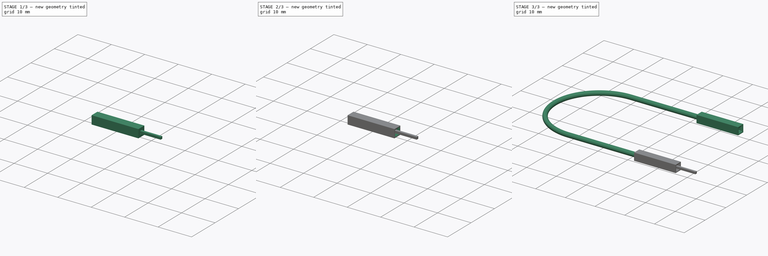
[diagram: build sequence overview — one tinted view per stage of 3, left to right]
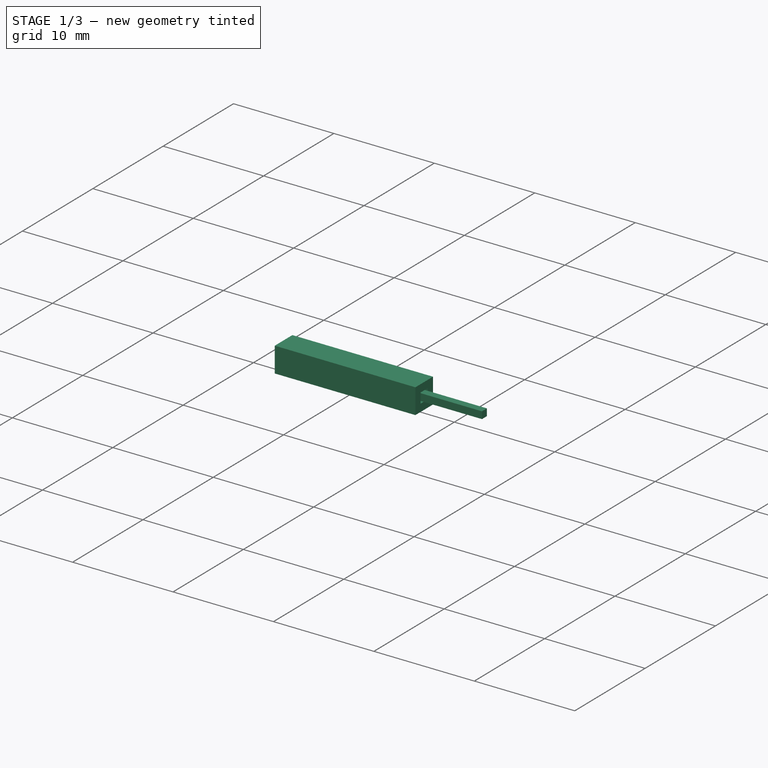
[diagram: stage 1 of 3 — iso view after this stage's code; geometry added in this stage tinted green]
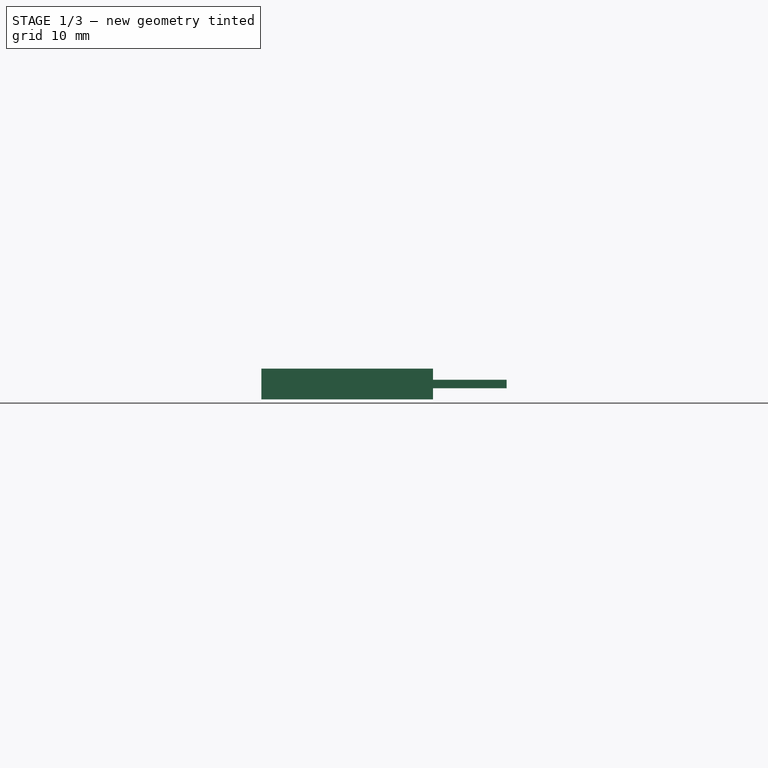
[diagram: stage 1 of 3 — front view after this stage's code; geometry added in this stage tinted green]
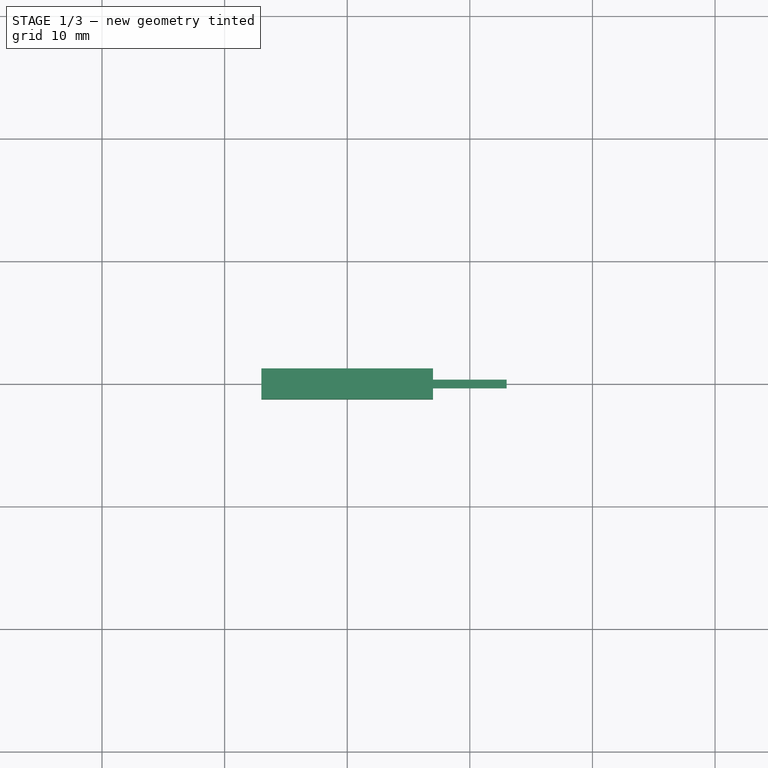
[diagram: stage 1 of 3 — top view after this stage's code; geometry added in this stage tinted green]
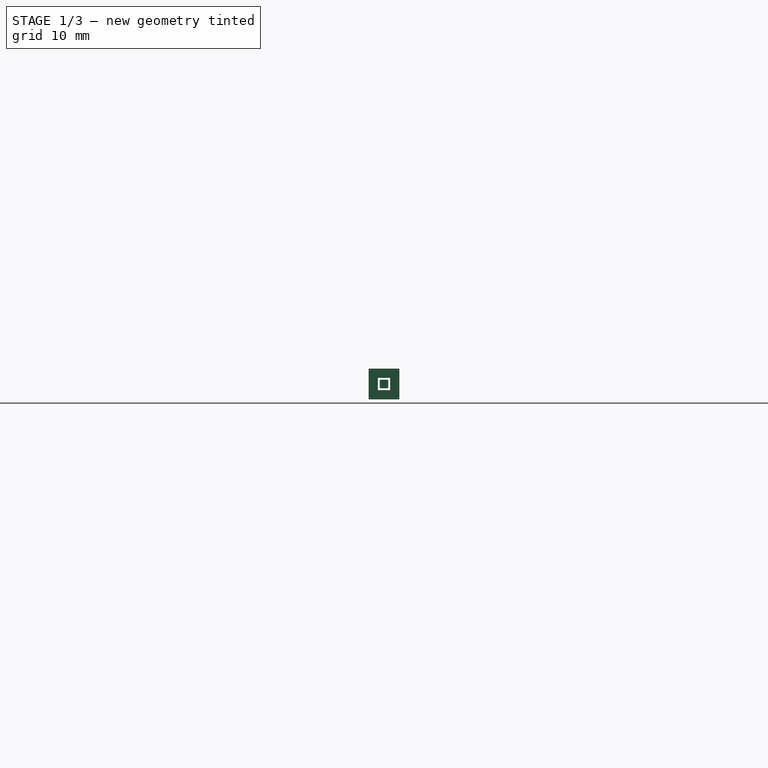
[diagram: stage 1 of 3 — right view after this stage's code; geometry added in this stage tinted green]
FCSTD DOCUMENT  (FreeCAD 0.14R3692 (Git))
Label: JumperWire_Male-Female
License: CC-BY 3.0
LicenseURL: http://creativecommons.org/licenses/by/3.0/
objects: Sketcher::SketchObject×6, PartDesign::Pad×2, PartDesign::Pocket×2, Part::Sweep×1, Part::Chamfer×1, Part::FeaturePython×1, Part::MultiFuse×1
note: 18 computed .brp shape members not serialized (recipe doc carries the construction recipe); baked Part::Feature solids carry a one-line shape summary decoded from their .brp

FEATURE [Sketcher::SketchObject] Sketch  label="HousingSketch"
  Placement = pos=(0,0,0) rot=(0.57735,0.57735,0.57735;2.0944rad)
  sketch-geometry (4):
    g0: LineSegment StartX=1.25 StartY=-1.25 StartZ=0 EndX=-1.25 EndY=-1.25 EndZ=0
    g1: LineSegment StartX=-1.25 StartY=-1.25 StartZ=0 EndX=-1.25 EndY=1.25 EndZ=0
    g2: LineSegment StartX=-1.25 StartY=1.25 StartZ=0 EndX=1.25 EndY=1.25 EndZ=0
    g3: LineSegment StartX=1.25 StartY=1.25 StartZ=0 EndX=1.25 EndY=-1.25 EndZ=0
  constraints (11):
    c: Coincident(g0,g1)
    c: Coincident(g1,g2)
    c: Coincident(g2,g3)
    c: Coincident(g3,g0)
    c: Horizontal(g0)
    c: Horizontal(g2)
    c: Vertical(g1)
    c: Vertical(g3)
    c: DistanceX(g0) = -2.5
    c: Symmetric(g0,g2,g-1)
    c: Equal(g0,g3)
FEATURE [PartDesign::Pad] Pad  label="HousingPad"
  Length = 14
  Length2 = 100
  Midplane = true
  Placement = pos=(0,0,0) rot=(0.57735,0.57735,0.57735;2.0944rad)
  Sketch = -> Sketch
  Type = 0
FEATURE [Sketcher::SketchObject] Sketch003  label="HousingPinHoleSketch003"
  Placement = pos=(7,0,0) rot=(0.57735,0.57735,0.57735;2.0944rad)
  Support = -> Pad [Face6]
  sketch-geometry (4):
    g0: LineSegment StartX=-0.5 StartY=0.5 StartZ=0 EndX=0.5 EndY=0.5 EndZ=0
    g1: LineSegment StartX=0.5 StartY=0.5 StartZ=0 EndX=0.5 EndY=-0.5 EndZ=0
    g2: LineSegment StartX=0.5 StartY=-0.5 StartZ=0 EndX=-0.5 EndY=-0.5 EndZ=0
    g3: LineSegment StartX=-0.5 StartY=-0.5 StartZ=0 EndX=-0.5 EndY=0.5 EndZ=0
  constraints (11):
    c: Coincident(g0,g1)
    c: Coincident(g1,g2)
    c: Coincident(g2,g3)
    c: Coincident(g3,g0)
    c: Horizontal(g0)
    c: Horizontal(g2)
    c: Vertical(g1)
    c: Vertical(g3)
    c: Symmetric(g2,g0,g-1)
    c: Equal(g2,g1)
    c: DistanceX(g2) = -1
FEATURE [PartDesign::Pocket] Pocket  label="HousingPinHolePocket"
  Length = 5
  Placement = pos=(0,0,0) rot=(0.57735,0.57735,0.57735;2.0944rad)
  Sketch = -> Sketch003
  Type = 1
FEATURE [Sketcher::SketchObject] Sketch005  label="PinSketch005"
  Placement = pos=(0,0,0) rot=(0.57735,0.57735,0.57735;2.0944rad)
  sketch-geometry (4):
    g0: LineSegment StartX=0.35 StartY=-0.35 StartZ=0 EndX=-0.35 EndY=-0.35 EndZ=0
    g1: LineSegment StartX=-0.35 StartY=-0.35 StartZ=0 EndX=-0.35 EndY=0.35 EndZ=0
    g2: LineSegment StartX=-0.35 StartY=0.35 StartZ=0 EndX=0.35 EndY=0.35 EndZ=0
    g3: LineSegment StartX=0.35 StartY=0.35 StartZ=0 EndX=0.35 EndY=-0.35 EndZ=0
  constraints (11):
    c: Coincident(g0,g1)
    c: Coincident(g1,g2)
    c: Coincident(g2,g3)
    c: Coincident(g3,g0)
    c: Horizontal(g0)
    c: Horizontal(g2)
    c: Vertical(g1)
    c: Vertical(g3)
    c: Equal(g0,g3)
    c: Symmetric(g0,g2,g-1)
    c: DistanceX(g0) = -0.7
FEATURE [PartDesign::Pad] Pad001  label="PinPad001"
  Length = 13
  Length2 = 100
  Placement = pos=(0,0,0) rot=(0.57735,0.57735,0.57735;2.0944rad)
  Sketch = -> Sketch005
  Type = 0
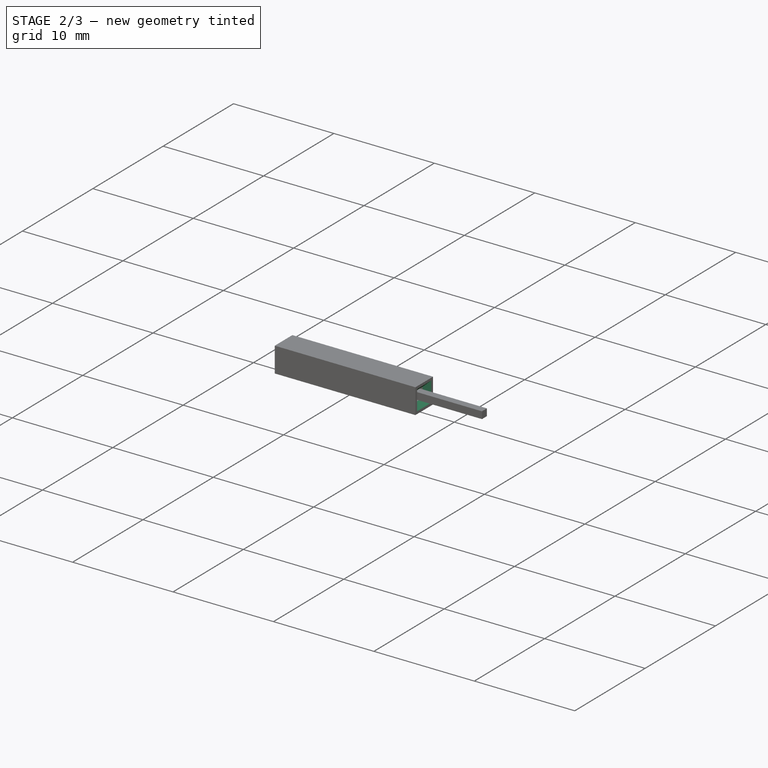
[diagram: stage 2 of 3 — iso view after this stage's code; geometry added in this stage tinted green]
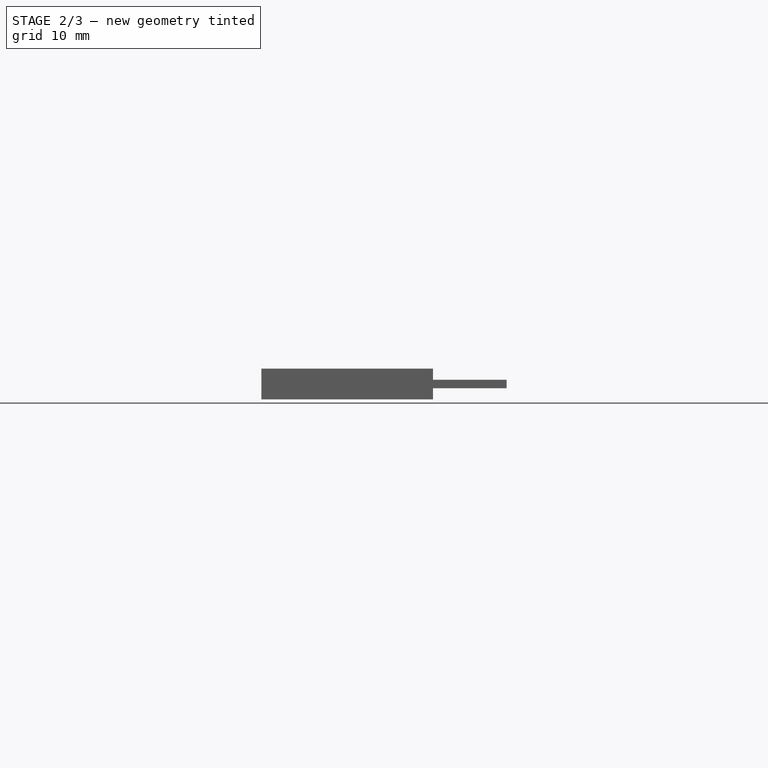
[diagram: stage 2 of 3 — front view after this stage's code; geometry added in this stage tinted green]
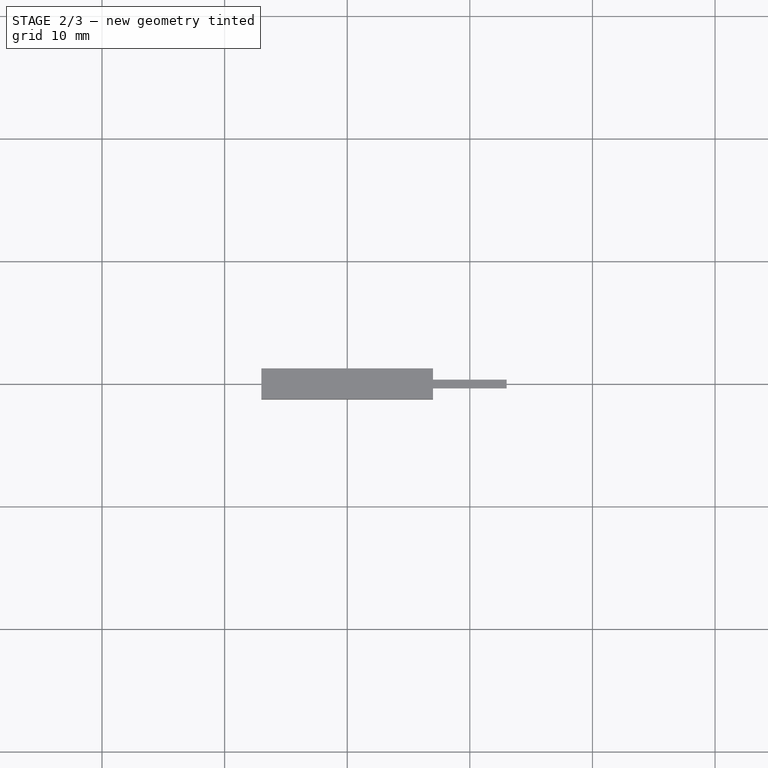
[diagram: stage 2 of 3 — top view after this stage's code; geometry added in this stage tinted green]
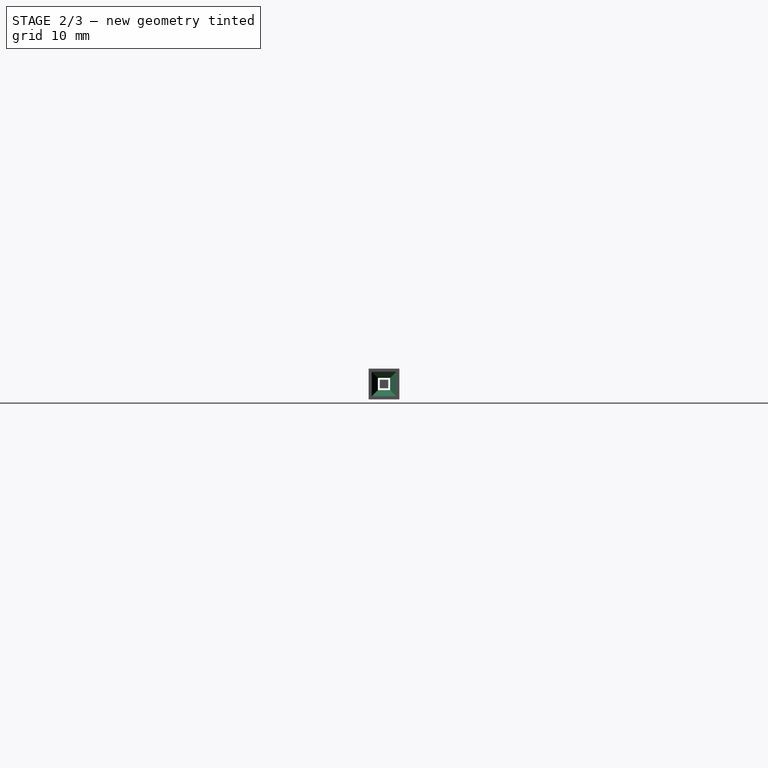
[diagram: stage 2 of 3 — right view after this stage's code; geometry added in this stage tinted green]
FEATURE [Part::Chamfer] Chamfer  label="HousingPinHoleChamfer"
  Base = -> Pocket
  Edges = 4 edges r=0.5: [Edge17,Edge18,Edge19,Edge20]
FEATURE [Sketcher::SketchObject] Sketch004  label="HousingCableHoleSketch004"
  Placement = pos=(-7,0,0) rot=(-0.57735,0.57735,0.57735;4.18879rad)
  Support = -> Chamfer [Face14]
  sketch-geometry (4):
    g0: LineSegment StartX=-1 StartY=1 StartZ=0 EndX=1 EndY=1 EndZ=0
    g1: LineSegment StartX=1 StartY=1 StartZ=0 EndX=1 EndY=-1 EndZ=0
    g2: LineSegment StartX=1 StartY=-1 StartZ=0 EndX=-1 EndY=-1 EndZ=0
    g3: LineSegment StartX=-1 StartY=-1 StartZ=0 EndX=-1 EndY=1 EndZ=0
  constraints (11):
    c: Coincident(g0,g1)
    c: Coincident(g1,g2)
    c: Coincident(g2,g3)
    c: Coincident(g3,g0)
    c: Horizontal(g0)
    c: Horizontal(g2)
    c: Vertical(g1)
    c: Vertical(g3)
    c: Equal(g2,g1)
    c: Symmetric(g2,g0,g-1)
    c: DistanceX(g2) = -2
FEATURE [PartDesign::Pocket] Pocket001  label="HousingCableHolePocket001"
  Length = 7
  Sketch = -> Sketch004
  Type = 0
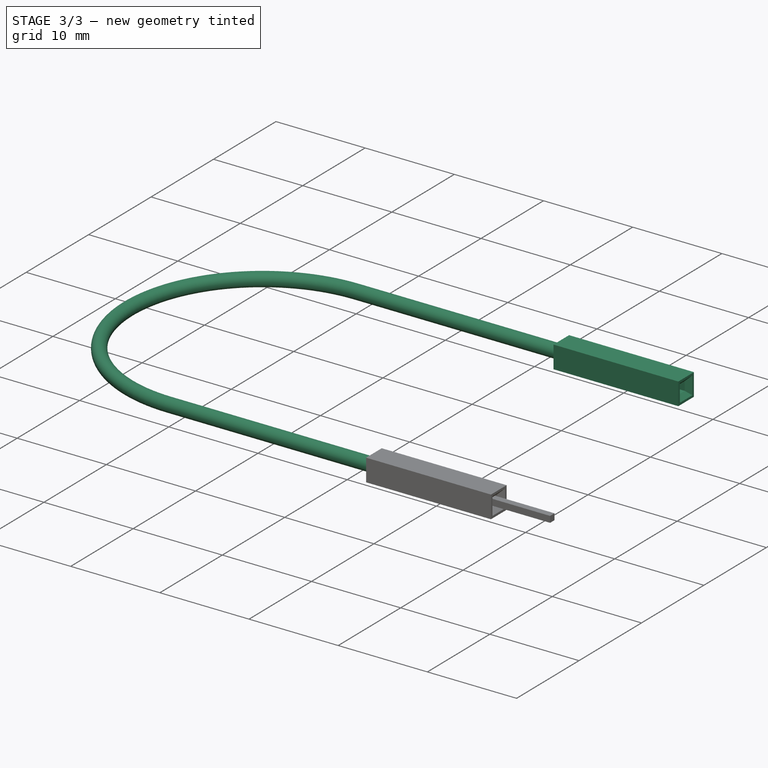
[diagram: stage 3 of 3 — iso view after this stage's code; geometry added in this stage tinted green]
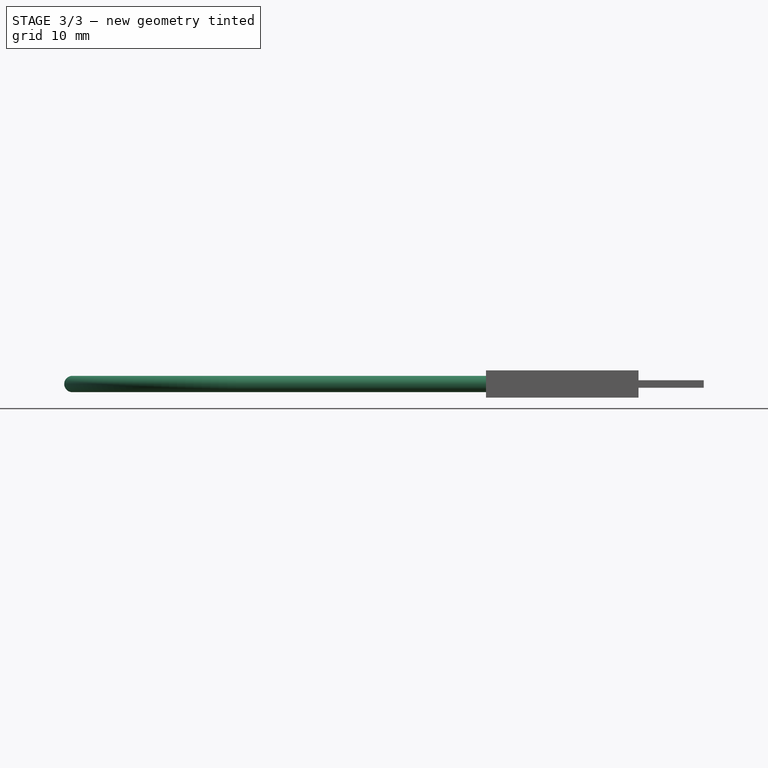
[diagram: stage 3 of 3 — front view after this stage's code; geometry added in this stage tinted green]
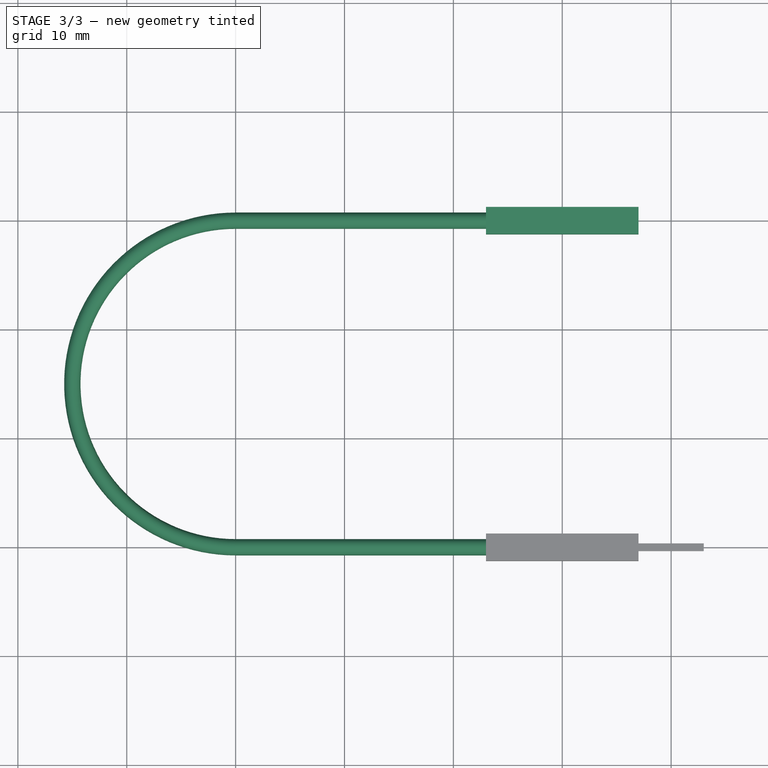
[diagram: stage 3 of 3 — top view after this stage's code; geometry added in this stage tinted green]
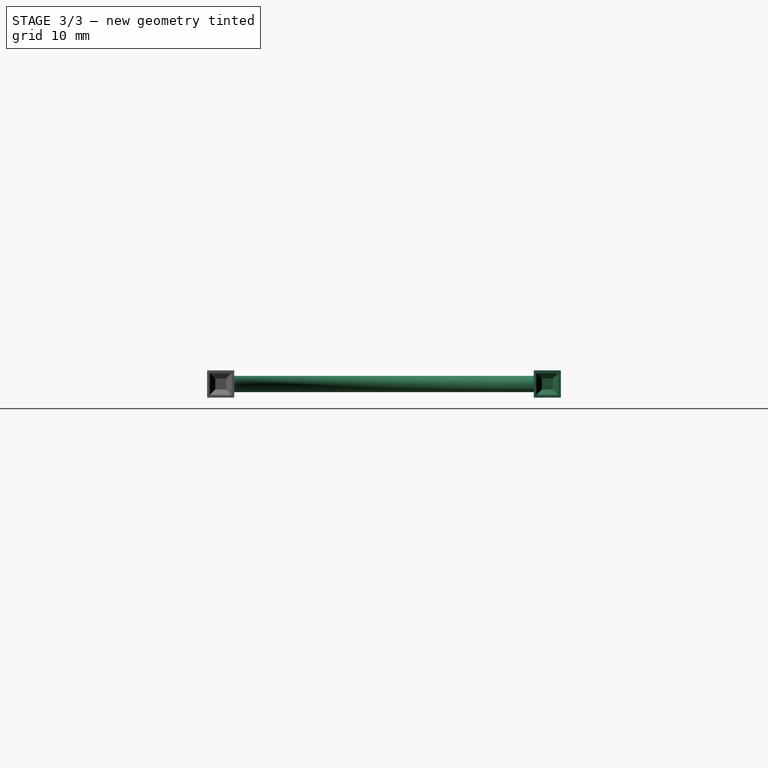
[diagram: stage 3 of 3 — right view after this stage's code; geometry added in this stage tinted green]
FEATURE [Sketcher::SketchObject] Sketch001  label="WirePathSketch001"
  sketch-geometry (3):
    g0: LineSegment StartX=0 StartY=0 StartZ=0 EndX=-30 EndY=0 EndZ=0
    g1: ArcOfCircle CenterX=-30 CenterY=15 CenterZ=0 NormalX=0 NormalY=0 NormalZ=1 Radius=15 StartAngle=1.5708 EndAngle=4.71239
    g2: LineSegment StartX=-30 StartY=30 StartZ=0 EndX=0 EndY=30 EndZ=0
  constraints (8):
    c: Horizontal(g0)
    c: Tangent(g0,g1)
    c: Tangent(g1,g2)
    c: Horizontal(g2)
    c: DistanceX(g2) = 30
    c: Radius(g1) = 15
    c: Equal(g2,g0)
    c: Coincident(g0,g-1)
FEATURE [Sketcher::SketchObject] Sketch002  label="WireSectionSketch002"
  Placement = pos=(0,0,0) rot=(0.57735,0.57735,0.57735;2.0944rad)
  sketch-geometry (1):
    g0: Circle CenterX=0 CenterY=0 CenterZ=0 NormalX=0 NormalY=0 NormalZ=1 Radius=0.75
  constraints (2):
    c: Coincident(g0,g-1)
    c: Radius(g0) = 0.75
FEATURE [Part::Sweep] Sweep  label="WireSweep"
  Frenet = false
  Sections = -> [Sketch002]
  Solid = true
  Spine = -> Sketch001 [Edge1]
  Transition = 1
FEATURE [Part::FeaturePython] Clone  label="Clone of HousingCableHolePocket001"  # Draft clone (typed FeaturePython)
  Objects = -> [Pocket001]
  Placement = pos=(0,30,0) rot=(0,0,1;0rad)
  Scale = (1,1,1)
FEATURE [Part::MultiFuse] Fusion  label="JumperWireFusion"
  Shapes = -> [Sweep,Pad001,Clone,Pocket001]
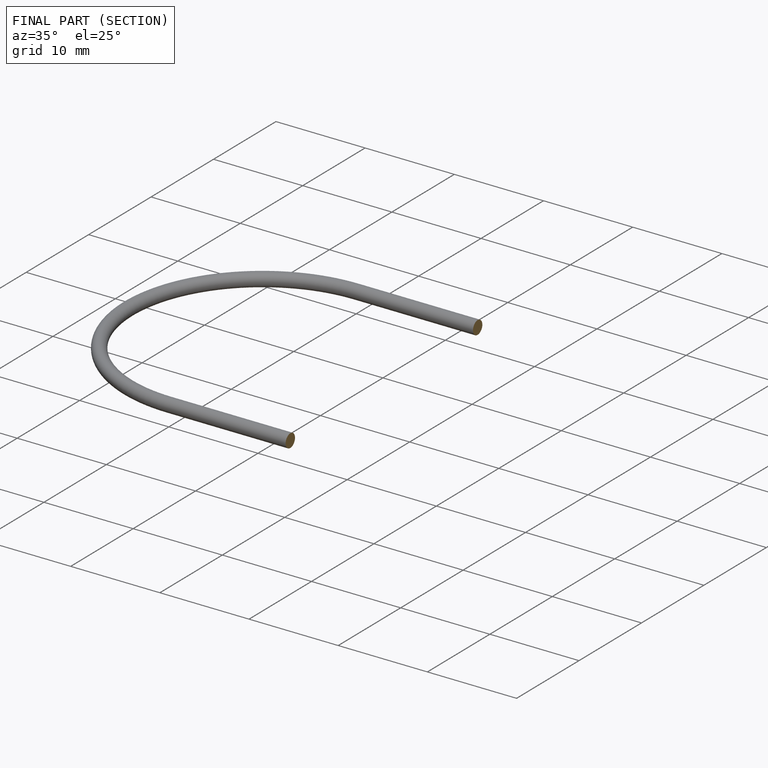
[diagram: finished part — half-section view (interior)]
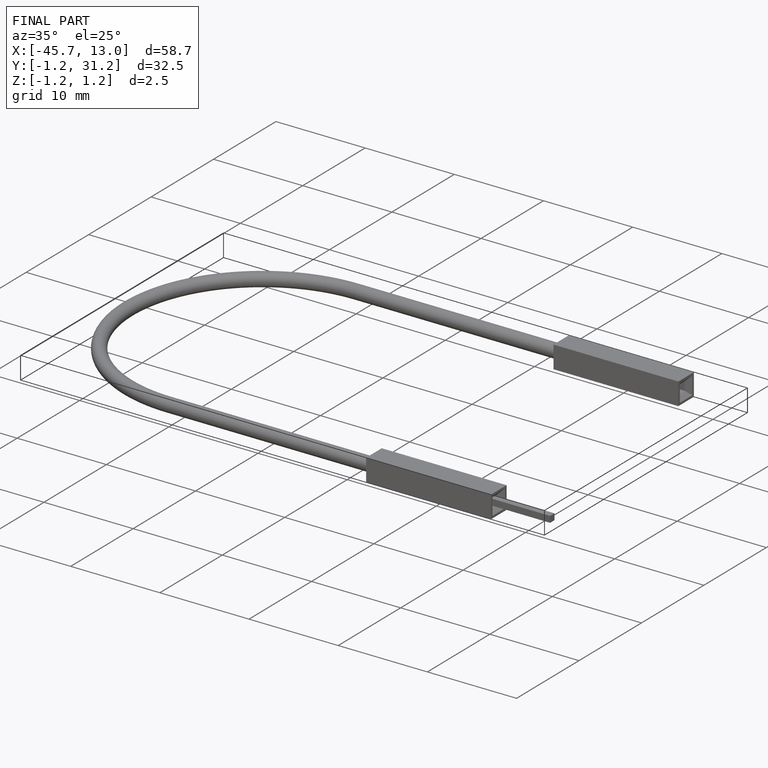
[diagram: finished part — iso view with bounding-box wireframe]
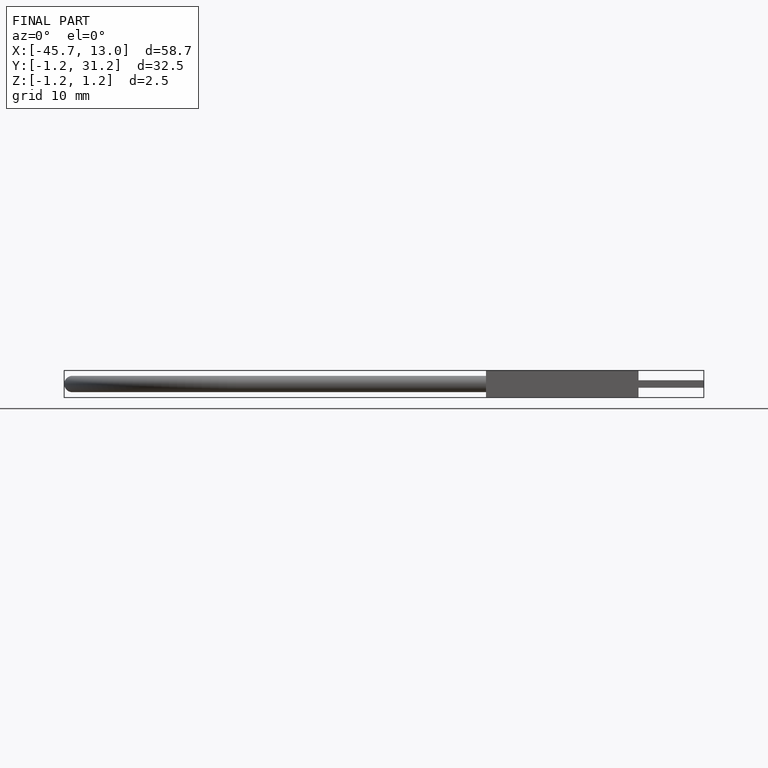
[diagram: finished part — front view with bounding-box wireframe]
